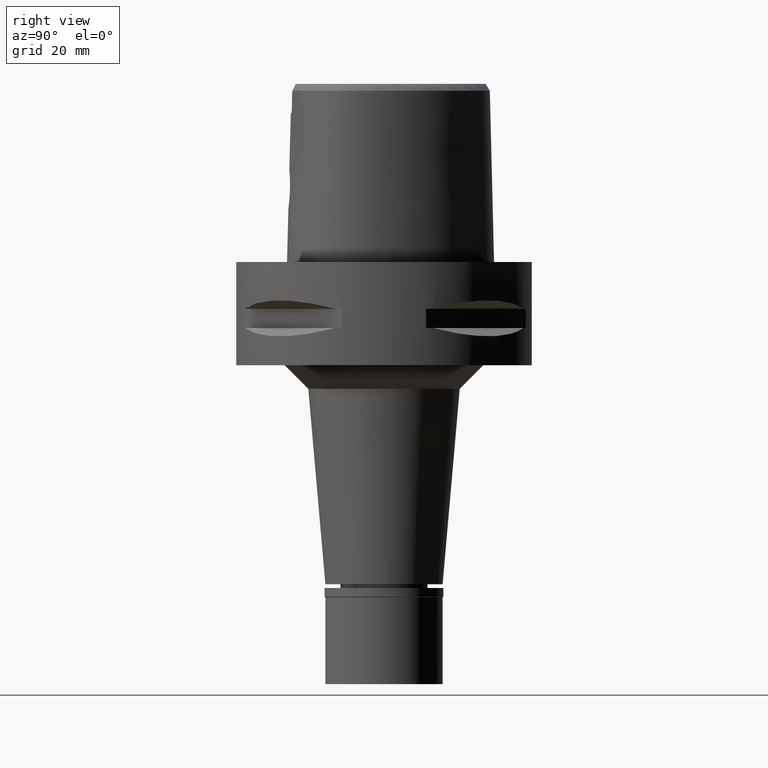
[diagram: clean part render]
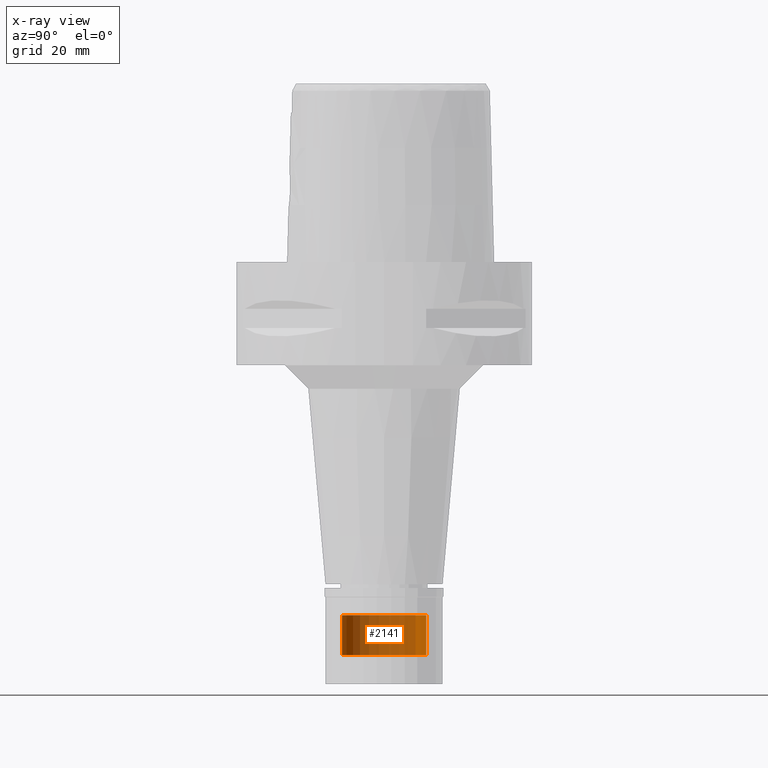
[diagram: x-ray — body ghosted, one internal face saturated and labeled with its STEP entity id]
A machine part, right view, then the same camera in x-ray: the body is ghosted and one INTERNAL B-rep face — a face not visible from any outside direction — is saturated and labeled: STEP entity #2141.
In plain terms, the highlighted cylindrical surface (partial cylindrical patch) has radius 9 mm, axis along (0, 0, -1).
Its self-contained STEP definition (entity closure, byte-faithful):
#30 = CIRCLE ( 'NONE', #4612, 9.000000000000000000 ) ;
#155 = CARTESIAN_POINT ( 'NONE',  ( 0.0000000000000000000, 0.0000000000000000000, 4.190000000000000391 ) ) ;
#251 = VERTEX_POINT ( 'NONE', #4439 ) ;
#395 = EDGE_CURVE ( 'NONE', #2003, #2990, #3243, .T. ) ;
#753 = ORIENTED_EDGE ( 'NONE', *, *, #2397, .T. ) ;
#883 = CARTESIAN_POINT ( 'NONE',  ( 0.0000000000000000000, 0.0000000000000000000, -75.30000000000001137 ) ) ;
#893 = DIRECTION ( 'NONE',  ( 0.0000000000000000000, 0.0000000000000000000, -1.000000000000000000 ) ) ;
#1273 = AXIS2_PLACEMENT_3D ( 'NONE', #155, #2856, #3644 ) ;
#1525 = LINE ( 'NONE', #2676, #3882 ) ;
#1549 = DIRECTION ( 'NONE',  ( 0.0000000000000000000, 0.0000000000000000000, -1.000000000000000000 ) ) ;
#1916 = ORIENTED_EDGE ( 'NONE', *, *, #3588, .T. ) ;
#2003 = VERTEX_POINT ( 'NONE', #5057 ) ;
#2032 = CARTESIAN_POINT ( 'NONE',  ( 0.0000000000000000000, 0.0000000000000000000, -83.79999999999999716 ) ) ;
#2088 = ORIENTED_EDGE ( 'NONE', *, *, #4720, .T. ) ;
#2141 = ADVANCED_FACE ( 'NONE', ( #4386 ), #3209, .T. ) ;
#2373 = AXIS2_PLACEMENT_3D ( 'NONE', #2032, #4766, #3230 ) ;
#2397 = EDGE_CURVE ( 'NONE', #2788, #251, #1525, .T. ) ;
#2676 = CARTESIAN_POINT ( 'NONE',  ( 0.0000000000000000000, 9.000000000000000000, -75.30000000000001137 ) ) ;
#2788 = VERTEX_POINT ( 'NONE', #3995 ) ;
#2856 = DIRECTION ( 'NONE',  ( 0.0000000000000000000, 0.0000000000000000000, -1.000000000000000000 ) ) ;
#2891 = DIRECTION ( 'NONE',  ( 0.0000000000000000000, -1.000000000000000000, 0.0000000000000000000 ) ) ;
#2903 = CARTESIAN_POINT ( 'NONE',  ( 0.0000000000000000000, -9.000000000000000000, -75.30000000000001137 ) ) ;
#2990 = VERTEX_POINT ( 'NONE', #4270 ) ;
#3054 = ORIENTED_EDGE ( 'NONE', *, *, #395, .F. ) ;
#3209 = CYLINDRICAL_SURFACE ( 'NONE', #1273, 9.000000000000000000 ) ;
#3230 = DIRECTION ( 'NONE',  ( 0.0000000000000000000, 1.000000000000000000, 0.0000000000000000000 ) ) ;
#3243 = LINE ( 'NONE', #2903, #3824 ) ;
#3394 = EDGE_LOOP ( 'NONE', ( #1916, #3054, #2088, #753 ) ) ;
#3588 = EDGE_CURVE ( 'NONE', #251, #2990, #4654, .T. ) ;
#3644 = DIRECTION ( 'NONE',  ( 0.0000000000000000000, -1.000000000000000000, 0.0000000000000000000 ) ) ;
#3824 = VECTOR ( 'NONE', #893, 1000.000000000000000 ) ;
#3882 = VECTOR ( 'NONE', #1549, 1000.000000000000000 ) ;
#3995 = CARTESIAN_POINT ( 'NONE',  ( 0.0000000000000000000, 9.000000000000000000, -75.30000000000001137 ) ) ;
#4016 = DIRECTION ( 'NONE',  ( 0.0000000000000000000, 0.0000000000000000000, -1.000000000000000000 ) ) ;
#4270 = CARTESIAN_POINT ( 'NONE',  ( 0.0000000000000000000, -9.000000000000000000, -83.79999999999999716 ) ) ;
#4386 = FACE_OUTER_BOUND ( 'NONE', #3394, .T. ) ;
#4439 = CARTESIAN_POINT ( 'NONE',  ( 0.0000000000000000000, 9.000000000000000000, -83.79999999999999716 ) ) ;
#4612 = AXIS2_PLACEMENT_3D ( 'NONE', #883, #4016, #2891 ) ;
#4654 = CIRCLE ( 'NONE', #2373, 9.000000000000000000 ) ;
#4720 = EDGE_CURVE ( 'NONE', #2003, #2788, #30, .T. ) ;
#4766 = DIRECTION ( 'NONE',  ( 0.0000000000000000000, 0.0000000000000000000, 1.000000000000000000 ) ) ;
#5057 = CARTESIAN_POINT ( 'NONE',  ( 0.0000000000000000000, -9.000000000000000000, -75.30000000000001137 ) ) ;